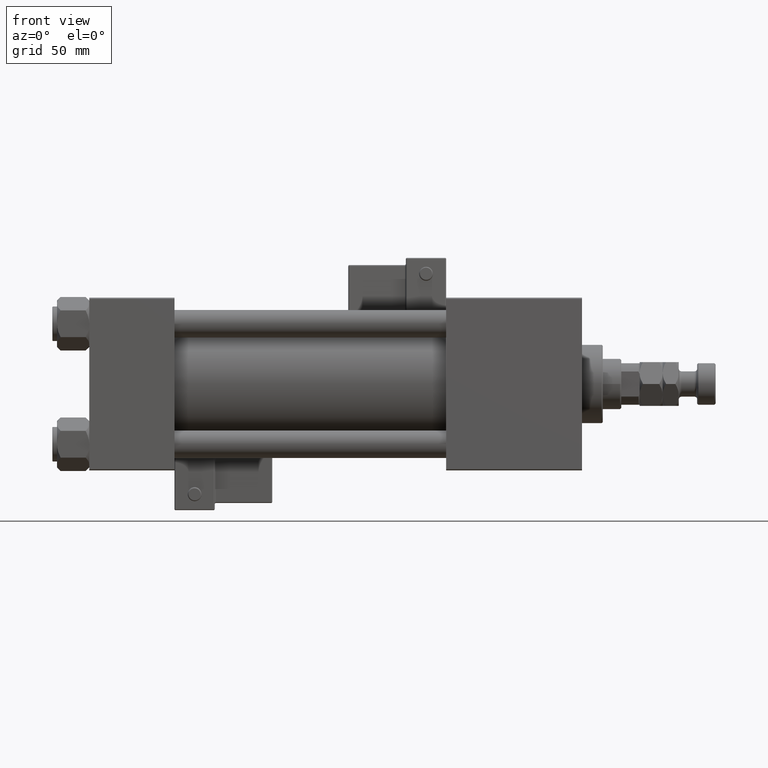
[diagram: clean part render]
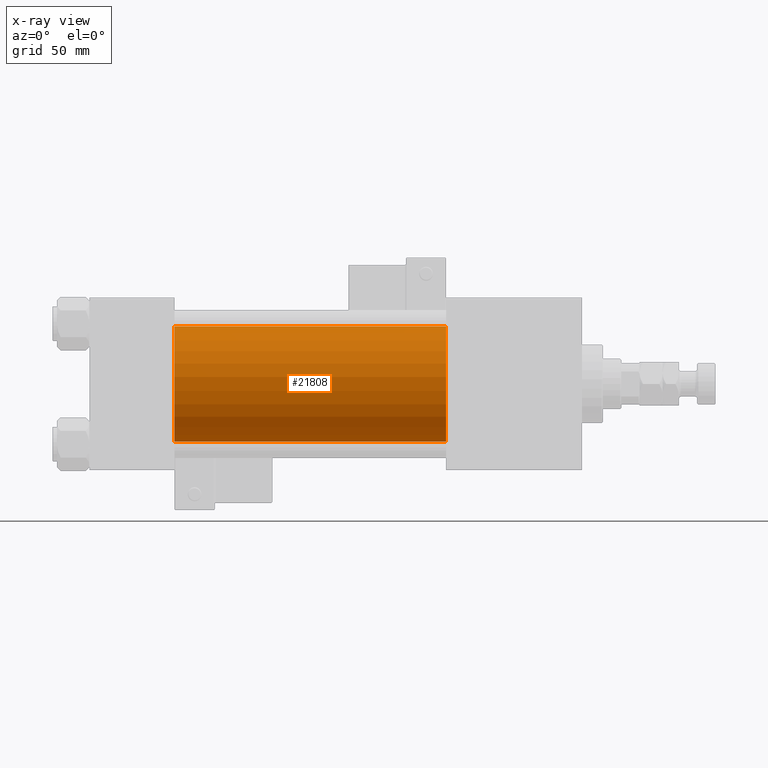
[diagram: x-ray — body ghosted, one internal face saturated and labeled with its STEP entity id]
A machine part, front view, then the same camera in x-ray: the body is ghosted and one INTERNAL B-rep face — a face not visible from any outside direction — is saturated and labeled: STEP entity #21808.
In plain terms, the highlighted cylindrical surface (partial cylindrical patch) has radius 25 mm, axis along (-1, -0, -0).
Its self-contained STEP definition (entity closure, byte-faithful):
#1850 = CARTESIAN_POINT ( 'NONE',  ( 155.0000000000000000, 4.595317839031724996E-16, -25.00000000000000000 ) ) ;
#4310 = CARTESIAN_POINT ( 'NONE',  ( 37.00000000000000000, -2.602085213965210642E-15, 0.000000000000000000 ) ) ;
#8220 = EDGE_CURVE ( 'NONE', #12141, #20365, #14128, .T. ) ;
#10492 = CARTESIAN_POINT ( 'NONE',  ( 155.0000000000000000, -2.602085213965210642E-15, 0.000000000000000000 ) ) ;
#12141 = VERTEX_POINT ( 'NONE', #31595 ) ;
#12363 = CARTESIAN_POINT ( 'NONE',  ( 155.0000000000000000, -2.602085213965210642E-15, 25.00000000000000000 ) ) ;
#12371 = AXIS2_PLACEMENT_3D ( 'NONE', #4310, #49278, #54204 ) ;
#13192 = EDGE_CURVE ( 'NONE', #36464, #33173, #44089, .T. ) ;
#13581 = VECTOR ( 'NONE', #49759, 1000.000000000000000 ) ;
#14128 = CIRCLE ( 'NONE', #12371, 25.00000000000000000 ) ;
#15705 = DIRECTION ( 'NONE',  ( -1.000000000000000000, -0.000000000000000000, -0.000000000000000000 ) ) ;
#17057 = CARTESIAN_POINT ( 'NONE',  ( 155.0000000000000000, 4.595317839031724996E-16, -25.00000000000000000 ) ) ;
#20365 = VERTEX_POINT ( 'NONE', #23273 ) ;
#21808 = ADVANCED_FACE ( 'NONE', ( #36543 ), #53240, .F. ) ;
#22721 = DIRECTION ( 'NONE',  ( -1.000000000000000000, -0.000000000000000000, -0.000000000000000000 ) ) ;
#23273 = CARTESIAN_POINT ( 'NONE',  ( 37.00000000000000000, 4.595317839031724996E-16, -25.00000000000000000 ) ) ;
#25525 = ORIENTED_EDGE ( 'NONE', *, *, #8220, .F. ) ;
#26955 = EDGE_LOOP ( 'NONE', ( #52063, #50927, #25525, #45857 ) ) ;
#31595 = CARTESIAN_POINT ( 'NONE',  ( 37.00000000000000000, -2.602085213965210642E-15, 25.00000000000000000 ) ) ;
#33173 = VERTEX_POINT ( 'NONE', #17057 ) ;
#33562 = EDGE_CURVE ( 'NONE', #33173, #20365, #39424, .T. ) ;
#34673 = VECTOR ( 'NONE', #22721, 1000.000000000000000 ) ;
#36464 = VERTEX_POINT ( 'NONE', #12363 ) ;
#36543 = FACE_OUTER_BOUND ( 'NONE', #26955, .T. ) ;
#36980 = AXIS2_PLACEMENT_3D ( 'NONE', #10492, #15705, #52166 ) ;
#39424 = LINE ( 'NONE', #1850, #34673 ) ;
#43869 = EDGE_CURVE ( 'NONE', #36464, #12141, #53043, .T. ) ;
#44089 = CIRCLE ( 'NONE', #53711, 25.00000000000000000 ) ;
#45857 = ORIENTED_EDGE ( 'NONE', *, *, #43869, .F. ) ;
#48040 = DIRECTION ( 'NONE',  ( 0.000000000000000000, 0.000000000000000000, -1.000000000000000000 ) ) ;
#48853 = DIRECTION ( 'NONE',  ( 1.000000000000000000, 0.000000000000000000, 0.000000000000000000 ) ) ;
#49278 = DIRECTION ( 'NONE',  ( 1.000000000000000000, 0.000000000000000000, 0.000000000000000000 ) ) ;
#49759 = DIRECTION ( 'NONE',  ( -1.000000000000000000, -0.000000000000000000, -0.000000000000000000 ) ) ;
#50927 = ORIENTED_EDGE ( 'NONE', *, *, #33562, .T. ) ;
#52063 = ORIENTED_EDGE ( 'NONE', *, *, #13192, .T. ) ;
#52166 = DIRECTION ( 'NONE',  ( 0.000000000000000000, 0.000000000000000000, 1.000000000000000000 ) ) ;
#52959 = CARTESIAN_POINT ( 'NONE',  ( 155.0000000000000000, -2.602085213965210642E-15, 0.000000000000000000 ) ) ;
#53043 = LINE ( 'NONE', #53592, #13581 ) ;
#53240 = CYLINDRICAL_SURFACE ( 'NONE', #36980, 25.00000000000000000 ) ;
#53592 = CARTESIAN_POINT ( 'NONE',  ( 155.0000000000000000, -2.602085213965210642E-15, 25.00000000000000000 ) ) ;
#53711 = AXIS2_PLACEMENT_3D ( 'NONE', #52959, #48853, #48040 ) ;
#54204 = DIRECTION ( 'NONE',  ( 0.000000000000000000, 0.000000000000000000, -1.000000000000000000 ) ) ;